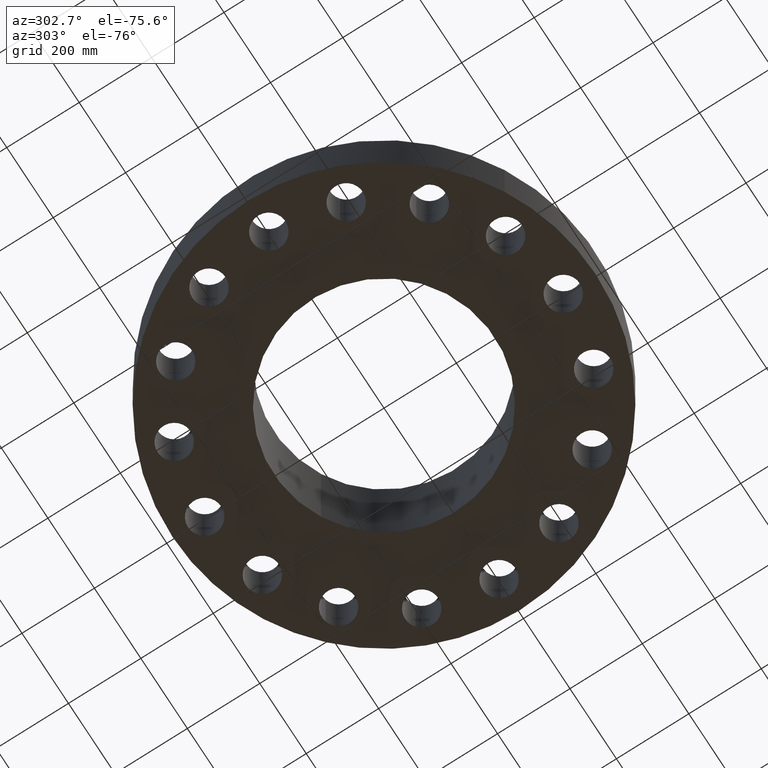
[diagram: clean part render]
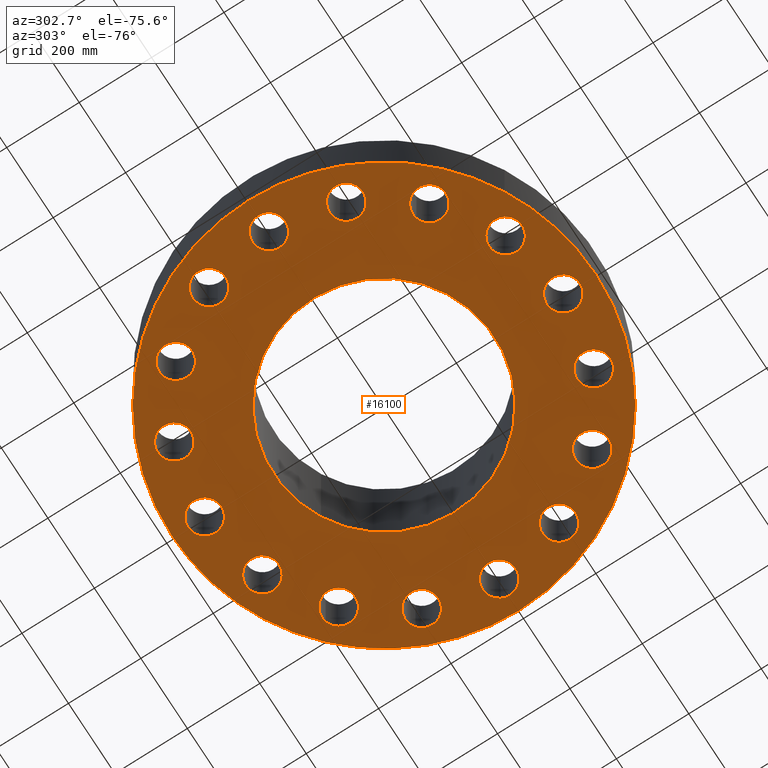
[diagram: same view with one face highlighted and labeled with its STEP entity id]
A machine part, auxiliary view. The second image highlights one B-rep face of the part: STEP entity #16100.
In plain terms, the highlighted planar face has unit normal (0, 0, 1).
Its self-contained STEP definition (entity closure, byte-faithful):
#65=AXIS2_PLACEMENT_3D('Circle Axis2P3D',#63,#64,$) ;
#82=AXIS2_PLACEMENT_3D('Circle Axis2P3D',#80,#81,$) ;
#433=AXIS2_PLACEMENT_3D('Circle Axis2P3D',#431,#432,$) ;
#442=AXIS2_PLACEMENT_3D('Circle Axis2P3D',#440,#441,$) ;
#449=AXIS2_PLACEMENT_3D('Circle Axis2P3D',#447,#448,$) ;
#475=AXIS2_PLACEMENT_3D('Circle Axis2P3D',#473,#474,$) ;
#482=AXIS2_PLACEMENT_3D('Circle Axis2P3D',#480,#481,$) ;
#489=AXIS2_PLACEMENT_3D('Circle Axis2P3D',#487,#488,$) ;
#565=AXIS2_PLACEMENT_3D('Circle Axis2P3D',#563,#564,$) ;
#577=AXIS2_PLACEMENT_3D('Circle Axis2P3D',#575,#576,$) ;
#608=AXIS2_PLACEMENT_3D('Circle Axis2P3D',#606,#607,$) ;
#620=AXIS2_PLACEMENT_3D('Circle Axis2P3D',#618,#619,$) ;
#651=AXIS2_PLACEMENT_3D('Circle Axis2P3D',#649,#650,$) ;
#663=AXIS2_PLACEMENT_3D('Circle Axis2P3D',#661,#662,$) ;
#694=AXIS2_PLACEMENT_3D('Circle Axis2P3D',#692,#693,$) ;
#706=AXIS2_PLACEMENT_3D('Circle Axis2P3D',#704,#705,$) ;
#737=AXIS2_PLACEMENT_3D('Circle Axis2P3D',#735,#736,$) ;
#749=AXIS2_PLACEMENT_3D('Circle Axis2P3D',#747,#748,$) ;
#780=AXIS2_PLACEMENT_3D('Circle Axis2P3D',#778,#779,$) ;
#792=AXIS2_PLACEMENT_3D('Circle Axis2P3D',#790,#791,$) ;
#823=AXIS2_PLACEMENT_3D('Circle Axis2P3D',#821,#822,$) ;
#835=AXIS2_PLACEMENT_3D('Circle Axis2P3D',#833,#834,$) ;
#866=AXIS2_PLACEMENT_3D('Circle Axis2P3D',#864,#865,$) ;
#878=AXIS2_PLACEMENT_3D('Circle Axis2P3D',#876,#877,$) ;
#909=AXIS2_PLACEMENT_3D('Circle Axis2P3D',#907,#908,$) ;
#921=AXIS2_PLACEMENT_3D('Circle Axis2P3D',#919,#920,$) ;
#952=AXIS2_PLACEMENT_3D('Circle Axis2P3D',#950,#951,$) ;
#964=AXIS2_PLACEMENT_3D('Circle Axis2P3D',#962,#963,$) ;
#995=AXIS2_PLACEMENT_3D('Circle Axis2P3D',#993,#994,$) ;
#1007=AXIS2_PLACEMENT_3D('Circle Axis2P3D',#1005,#1006,$) ;
#1038=AXIS2_PLACEMENT_3D('Circle Axis2P3D',#1036,#1037,$) ;
#1050=AXIS2_PLACEMENT_3D('Circle Axis2P3D',#1048,#1049,$) ;
#1081=AXIS2_PLACEMENT_3D('Circle Axis2P3D',#1079,#1080,$) ;
#1093=AXIS2_PLACEMENT_3D('Circle Axis2P3D',#1091,#1092,$) ;
#1124=AXIS2_PLACEMENT_3D('Circle Axis2P3D',#1122,#1123,$) ;
#1136=AXIS2_PLACEMENT_3D('Circle Axis2P3D',#1134,#1135,$) ;
#1167=AXIS2_PLACEMENT_3D('Circle Axis2P3D',#1165,#1166,$) ;
#1179=AXIS2_PLACEMENT_3D('Circle Axis2P3D',#1177,#1178,$) ;
#1461=AXIS2_PLACEMENT_3D('Circle Axis2P3D',#1459,#1460,$) ;
#1487=AXIS2_PLACEMENT_3D('Circle Axis2P3D',#1485,#1486,$) ;
#16022=AXIS2_PLACEMENT_3D('Plane Axis2P3D',#16019,#16020,#16021) ;
#46=CARTESIAN_POINT('Vertex',(17.9115755631,-0.867760224877,2.2401153548E-016)) ;
#60=CARTESIAN_POINT('Vertex',(21.0884244371,0.867760224877,2.2401153548E-016)) ;
#63=CARTESIAN_POINT('Axis2P3D Location',(19.5000000001,0.,0.)) ;
#80=CARTESIAN_POINT('Axis2P3D Location',(19.5000000001,0.,0.)) ;
#431=CARTESIAN_POINT('Axis2P3D Location',(0.,0.,3.35689481461E-015)) ;
#435=CARTESIAN_POINT('Vertex',(-8.80570800757E-015,23.0000000001,0.)) ;
#437=CARTESIAN_POINT('Vertex',(11.0267873879,20.1843989236,3.35689481461E-015)) ;
#440=CARTESIAN_POINT('Axis2P3D Location',(0.,0.,3.35689481461E-015)) ;
#444=CARTESIAN_POINT('Vertex',(-23.0000000001,-2.81668763805E-015,0.)) ;
#447=CARTESIAN_POINT('Axis2P3D Location',(0.,0.,3.35689481461E-015)) ;
#451=CARTESIAN_POINT('Vertex',(-11.0267873879,-20.1843989236,3.35689481461E-015)) ;
#473=CARTESIAN_POINT('Axis2P3D Location',(0.,0.,3.35689481461E-015)) ;
#477=CARTESIAN_POINT('Vertex',(-1.39127339209E-014,-23.0000000001,0.)) ;
#480=CARTESIAN_POINT('Axis2P3D Location',(0.,0.,3.35689481461E-015)) ;
#484=CARTESIAN_POINT('Vertex',(23.0000000001,6.71378962923E-015,0.)) ;
#487=CARTESIAN_POINT('Axis2P3D Location',(0.,0.,3.35689481461E-015)) ;
#553=CARTESIAN_POINT('Vertex',(16.2160605964,-7.65616912643,2.2401153548E-016)) ;
#560=CARTESIAN_POINT('Vertex',(19.8152411717,-7.26848473587,2.2401153548E-016)) ;
#563=CARTESIAN_POINT('Axis2P3D Location',(18.015650884,-7.46232693115,0.)) ;
#575=CARTESIAN_POINT('Axis2P3D Location',(18.015650884,-7.46232693115,0.)) ;
#596=CARTESIAN_POINT('Vertex',(12.0517974029,-13.2789956818,2.2401153548E-016)) ;
#603=CARTESIAN_POINT('Vertex',(15.5253670635,-14.2981687846,2.2401153548E-016)) ;
#606=CARTESIAN_POINT('Axis2P3D Location',(13.7885822332,-13.7885822332,0.)) ;
#618=CARTESIAN_POINT('Axis2P3D Location',(13.7885822332,-13.7885822332,0.)) ;
#639=CARTESIAN_POINT('Vertex',(6.05275730464,-16.8802155191,2.2401153548E-016)) ;
#646=CARTESIAN_POINT('Vertex',(8.87189655765,-19.151086249,2.2401153548E-016)) ;
#649=CARTESIAN_POINT('Axis2P3D Location',(7.46232693115,-18.015650884,0.)) ;
#661=CARTESIAN_POINT('Axis2P3D Location',(7.46232693115,-18.015650884,0.)) ;
#682=CARTESIAN_POINT('Vertex',(-0.867760224877,-17.9115755631,2.2401153548E-016)) ;
#689=CARTESIAN_POINT('Vertex',(0.867760224877,-21.0884244371,2.2401153548E-016)) ;
#692=CARTESIAN_POINT('Axis2P3D Location',(1.19403062917E-015,-19.5000000001,0.)) ;
#704=CARTESIAN_POINT('Axis2P3D Location',(1.19403062917E-015,-19.5000000001,0.)) ;
#725=CARTESIAN_POINT('Vertex',(-7.65616912643,-16.2160605964,2.2401153548E-016)) ;
#732=CARTESIAN_POINT('Vertex',(-7.26848473587,-19.8152411717,2.2401153548E-016)) ;
#735=CARTESIAN_POINT('Axis2P3D Location',(-7.46232693115,-18.015650884,0.)) ;
#747=CARTESIAN_POINT('Axis2P3D Location',(-7.46232693115,-18.015650884,0.)) ;
#768=CARTESIAN_POINT('Vertex',(-13.2789956818,-12.0517974029,2.2401153548E-016)) ;
#775=CARTESIAN_POINT('Vertex',(-14.2981687846,-15.5253670635,2.2401153548E-016)) ;
#778=CARTESIAN_POINT('Axis2P3D Location',(-13.7885822332,-13.7885822332,0.)) ;
#790=CARTESIAN_POINT('Axis2P3D Location',(-13.7885822332,-13.7885822332,0.)) ;
#811=CARTESIAN_POINT('Vertex',(-16.8802155191,-6.05275730464,2.2401153548E-016)) ;
#818=CARTESIAN_POINT('Vertex',(-19.151086249,-8.87189655765,2.2401153548E-016)) ;
#821=CARTESIAN_POINT('Axis2P3D Location',(-18.015650884,-7.46232693115,0.)) ;
#833=CARTESIAN_POINT('Axis2P3D Location',(-18.015650884,-7.46232693115,0.)) ;
#854=CARTESIAN_POINT('Vertex',(-17.9115755631,0.867760224877,2.2401153548E-016)) ;
#861=CARTESIAN_POINT('Vertex',(-21.0884244371,-0.867760224877,2.2401153548E-016)) ;
#864=CARTESIAN_POINT('Axis2P3D Location',(-19.5000000001,-2.38806125835E-015,0.)) ;
#876=CARTESIAN_POINT('Axis2P3D Location',(-19.5000000001,-2.38806125835E-015,0.)) ;
#897=CARTESIAN_POINT('Vertex',(-16.2160605964,7.65616912643,2.2401153548E-016)) ;
#904=CARTESIAN_POINT('Vertex',(-19.8152411717,7.26848473587,2.2401153548E-016)) ;
#907=CARTESIAN_POINT('Axis2P3D Location',(-18.015650884,7.46232693115,0.)) ;
#919=CARTESIAN_POINT('Axis2P3D Location',(-18.015650884,7.46232693115,0.)) ;
#940=CARTESIAN_POINT('Vertex',(-12.0517974029,13.2789956818,2.2401153548E-016)) ;
#947=CARTESIAN_POINT('Vertex',(-15.5253670635,14.2981687846,2.2401153548E-016)) ;
#950=CARTESIAN_POINT('Axis2P3D Location',(-13.7885822332,13.7885822332,0.)) ;
#962=CARTESIAN_POINT('Axis2P3D Location',(-13.7885822332,13.7885822332,0.)) ;
#983=CARTESIAN_POINT('Vertex',(-6.05275730464,16.8802155191,2.2401153548E-016)) ;
#990=CARTESIAN_POINT('Vertex',(-8.87189655765,19.151086249,2.2401153548E-016)) ;
#993=CARTESIAN_POINT('Axis2P3D Location',(-7.46232693115,18.015650884,0.)) ;
#1005=CARTESIAN_POINT('Axis2P3D Location',(-7.46232693115,18.015650884,0.)) ;
#1026=CARTESIAN_POINT('Vertex',(0.867760224877,17.9115755631,2.2401153548E-016)) ;
#1033=CARTESIAN_POINT('Vertex',(-0.867760224877,21.0884244371,2.2401153548E-016)) ;
#1036=CARTESIAN_POINT('Axis2P3D Location',(-3.58209188752E-015,19.5000000001,0.)) ;
#1048=CARTESIAN_POINT('Axis2P3D Location',(-3.58209188752E-015,19.5000000001,0.)) ;
#1069=CARTESIAN_POINT('Vertex',(7.65616912643,16.2160605964,2.22372426684E-016)) ;
#1076=CARTESIAN_POINT('Vertex',(7.26848473587,19.8152411717,2.22372426684E-016)) ;
#1079=CARTESIAN_POINT('Axis2P3D Location',(7.46232693115,18.015650884,-3.2782175924E-018)) ;
#1091=CARTESIAN_POINT('Axis2P3D Location',(7.46232693115,18.015650884,-3.2782175924E-018)) ;
#1112=CARTESIAN_POINT('Vertex',(13.2789956818,12.0517974029,2.2401153548E-016)) ;
#1119=CARTESIAN_POINT('Vertex',(14.2981687846,15.5253670635,2.2401153548E-016)) ;
#1122=CARTESIAN_POINT('Axis2P3D Location',(13.7885822332,13.7885822332,0.)) ;
#1134=CARTESIAN_POINT('Axis2P3D Location',(13.7885822332,13.7885822332,0.)) ;
#1155=CARTESIAN_POINT('Vertex',(16.8802155191,6.05275730464,2.2401153548E-016)) ;
#1162=CARTESIAN_POINT('Vertex',(19.151086249,8.87189655765,2.2401153548E-016)) ;
#1165=CARTESIAN_POINT('Axis2P3D Location',(18.015650884,7.46232693115,0.)) ;
#1177=CARTESIAN_POINT('Axis2P3D Location',(18.015650884,7.46232693115,0.)) ;
#1459=CARTESIAN_POINT('Axis2P3D Location',(0.,0.,0.)) ;
#1463=CARTESIAN_POINT('Vertex',(-5.75310646327,-10.5309907427,0.)) ;
#1465=CARTESIAN_POINT('Vertex',(5.75310646327,10.5309907427,0.)) ;
#1485=CARTESIAN_POINT('Axis2P3D Location',(0.,0.,0.)) ;
#16019=CARTESIAN_POINT('Axis2P3D Location',(0.,0.,0.)) ;
#64=DIRECTION('Axis2P3D Direction',(0.,-0.,0.0393700787402)) ;
#81=DIRECTION('Axis2P3D Direction',(0.,-0.,0.0393700787402)) ;
#432=DIRECTION('Axis2P3D Direction',(0.,0.,-0.0393700787402)) ;
#441=DIRECTION('Axis2P3D Direction',(0.,0.,-0.0393700787402)) ;
#448=DIRECTION('Axis2P3D Direction',(0.,0.,-0.0393700787402)) ;
#474=DIRECTION('Axis2P3D Direction',(0.,0.,-0.0393700787402)) ;
#481=DIRECTION('Axis2P3D Direction',(0.,0.,-0.0393700787402)) ;
#488=DIRECTION('Axis2P3D Direction',(0.,0.,-0.0393700787402)) ;
#564=DIRECTION('Axis2P3D Direction',(-0.,0.,0.0393700787402)) ;
#576=DIRECTION('Axis2P3D Direction',(-0.,0.,0.0393700787402)) ;
#607=DIRECTION('Axis2P3D Direction',(-0.,0.,0.0393700787402)) ;
#619=DIRECTION('Axis2P3D Direction',(-0.,0.,0.0393700787402)) ;
#650=DIRECTION('Axis2P3D Direction',(-0.,0.,0.0393700787402)) ;
#662=DIRECTION('Axis2P3D Direction',(-0.,0.,0.0393700787402)) ;
#693=DIRECTION('Axis2P3D Direction',(-0.,0.,0.0393700787402)) ;
#705=DIRECTION('Axis2P3D Direction',(-0.,0.,0.0393700787402)) ;
#736=DIRECTION('Axis2P3D Direction',(0.,0.,0.0393700787402)) ;
#748=DIRECTION('Axis2P3D Direction',(0.,0.,0.0393700787402)) ;
#779=DIRECTION('Axis2P3D Direction',(0.,0.,0.0393700787402)) ;
#791=DIRECTION('Axis2P3D Direction',(0.,0.,0.0393700787402)) ;
#822=DIRECTION('Axis2P3D Direction',(0.,0.,0.0393700787402)) ;
#834=DIRECTION('Axis2P3D Direction',(0.,0.,0.0393700787402)) ;
#865=DIRECTION('Axis2P3D Direction',(0.,0.,0.0393700787402)) ;
#877=DIRECTION('Axis2P3D Direction',(0.,0.,0.0393700787402)) ;
#908=DIRECTION('Axis2P3D Direction',(0.,0.,0.0393700787402)) ;
#920=DIRECTION('Axis2P3D Direction',(0.,0.,0.0393700787402)) ;
#951=DIRECTION('Axis2P3D Direction',(0.,0.,0.0393700787402)) ;
#963=DIRECTION('Axis2P3D Direction',(0.,0.,0.0393700787402)) ;
#994=DIRECTION('Axis2P3D Direction',(0.,0.,0.0393700787402)) ;
#1006=DIRECTION('Axis2P3D Direction',(0.,0.,0.0393700787402)) ;
#1037=DIRECTION('Axis2P3D Direction',(0.,0.,0.0393700787402)) ;
#1049=DIRECTION('Axis2P3D Direction',(0.,0.,0.0393700787402)) ;
#1080=DIRECTION('Axis2P3D Direction',(0.,-0.,0.0393700787402)) ;
#1092=DIRECTION('Axis2P3D Direction',(0.,-0.,0.0393700787402)) ;
#1123=DIRECTION('Axis2P3D Direction',(0.,-0.,0.0393700787402)) ;
#1135=DIRECTION('Axis2P3D Direction',(0.,-0.,0.0393700787402)) ;
#1166=DIRECTION('Axis2P3D Direction',(0.,-0.,0.0393700787402)) ;
#1178=DIRECTION('Axis2P3D Direction',(0.,-0.,0.0393700787402)) ;
#1460=DIRECTION('Axis2P3D Direction',(0.,0.,-0.0393700787402)) ;
#1486=DIRECTION('Axis2P3D Direction',(0.,0.,-0.0393700787402)) ;
#16020=DIRECTION('Axis2P3D Direction',(0.,0.,0.0393700787402)) ;
#16021=DIRECTION('Axis2P3D XDirection',(0.0393700787402,0.,0.)) ;
#16025=ORIENTED_EDGE('',*,*,#479,.T.) ;
#16026=ORIENTED_EDGE('',*,*,#453,.T.) ;
#16027=ORIENTED_EDGE('',*,*,#446,.T.) ;
#16028=ORIENTED_EDGE('',*,*,#439,.T.) ;
#16029=ORIENTED_EDGE('',*,*,#491,.T.) ;
#16030=ORIENTED_EDGE('',*,*,#486,.T.) ;
#16033=ORIENTED_EDGE('',*,*,#1169,.F.) ;
#16034=ORIENTED_EDGE('',*,*,#1181,.F.) ;
#16037=ORIENTED_EDGE('',*,*,#1126,.F.) ;
#16038=ORIENTED_EDGE('',*,*,#1138,.F.) ;
#16041=ORIENTED_EDGE('',*,*,#1083,.F.) ;
#16042=ORIENTED_EDGE('',*,*,#1095,.F.) ;
#16045=ORIENTED_EDGE('',*,*,#1040,.F.) ;
#16046=ORIENTED_EDGE('',*,*,#1052,.F.) ;
#16049=ORIENTED_EDGE('',*,*,#997,.F.) ;
#16050=ORIENTED_EDGE('',*,*,#1009,.F.) ;
#16053=ORIENTED_EDGE('',*,*,#954,.F.) ;
#16054=ORIENTED_EDGE('',*,*,#966,.F.) ;
#16057=ORIENTED_EDGE('',*,*,#911,.F.) ;
#16058=ORIENTED_EDGE('',*,*,#923,.F.) ;
#16061=ORIENTED_EDGE('',*,*,#868,.F.) ;
#16062=ORIENTED_EDGE('',*,*,#880,.F.) ;
#16065=ORIENTED_EDGE('',*,*,#825,.F.) ;
#16066=ORIENTED_EDGE('',*,*,#837,.F.) ;
#16069=ORIENTED_EDGE('',*,*,#782,.F.) ;
#16070=ORIENTED_EDGE('',*,*,#794,.F.) ;
#16073=ORIENTED_EDGE('',*,*,#739,.F.) ;
#16074=ORIENTED_EDGE('',*,*,#751,.F.) ;
#16077=ORIENTED_EDGE('',*,*,#696,.F.) ;
#16078=ORIENTED_EDGE('',*,*,#708,.F.) ;
#16081=ORIENTED_EDGE('',*,*,#653,.F.) ;
#16082=ORIENTED_EDGE('',*,*,#665,.F.) ;
#16085=ORIENTED_EDGE('',*,*,#610,.F.) ;
#16086=ORIENTED_EDGE('',*,*,#622,.F.) ;
#16089=ORIENTED_EDGE('',*,*,#567,.F.) ;
#16090=ORIENTED_EDGE('',*,*,#579,.F.) ;
#16093=ORIENTED_EDGE('',*,*,#84,.F.) ;
#16094=ORIENTED_EDGE('',*,*,#67,.F.) ;
#16097=ORIENTED_EDGE('',*,*,#1489,.T.) ;
#16098=ORIENTED_EDGE('',*,*,#1467,.T.) ;
#16035=FACE_BOUND('',#16032,.T.) ;
#16039=FACE_BOUND('',#16036,.T.) ;
#16043=FACE_BOUND('',#16040,.T.) ;
#16047=FACE_BOUND('',#16044,.T.) ;
#16051=FACE_BOUND('',#16048,.T.) ;
#16055=FACE_BOUND('',#16052,.T.) ;
#16059=FACE_BOUND('',#16056,.T.) ;
#16063=FACE_BOUND('',#16060,.T.) ;
#16067=FACE_BOUND('',#16064,.T.) ;
#16071=FACE_BOUND('',#16068,.T.) ;
#16075=FACE_BOUND('',#16072,.T.) ;
#16079=FACE_BOUND('',#16076,.T.) ;
#16083=FACE_BOUND('',#16080,.T.) ;
#16087=FACE_BOUND('',#16084,.T.) ;
#16091=FACE_BOUND('',#16088,.T.) ;
#16095=FACE_BOUND('',#16092,.T.) ;
#16099=FACE_BOUND('',#16096,.T.) ;
#16100=ADVANCED_FACE('PartBody',(#16031,#16035,#16039,#16043,#16047,#16051,#16055,#16059,#16063,#16067,#16071,#16075,#16079,#16083,#16087,#16091,#16095,#16099),#16023,.F.) ;
#66=CIRCLE('generated circle',#65,1.81000000001) ;
#83=CIRCLE('generated circle',#82,1.81000000001) ;
#434=CIRCLE('generated circle',#433,23.0000000001) ;
#443=CIRCLE('generated circle',#442,23.0000000001) ;
#450=CIRCLE('generated circle',#449,23.0000000001) ;
#476=CIRCLE('generated circle',#475,23.0000000001) ;
#483=CIRCLE('generated circle',#482,23.0000000001) ;
#490=CIRCLE('generated circle',#489,23.0000000001) ;
#566=CIRCLE('generated circle',#565,1.81000000001) ;
#578=CIRCLE('generated circle',#577,1.81000000001) ;
#609=CIRCLE('generated circle',#608,1.81000000001) ;
#621=CIRCLE('generated circle',#620,1.81000000001) ;
#652=CIRCLE('generated circle',#651,1.81000000001) ;
#664=CIRCLE('generated circle',#663,1.81000000001) ;
#695=CIRCLE('generated circle',#694,1.81000000001) ;
#707=CIRCLE('generated circle',#706,1.81000000001) ;
#738=CIRCLE('generated circle',#737,1.81000000001) ;
#750=CIRCLE('generated circle',#749,1.81000000001) ;
#781=CIRCLE('generated circle',#780,1.81000000001) ;
#793=CIRCLE('generated circle',#792,1.81000000001) ;
#824=CIRCLE('generated circle',#823,1.81000000001) ;
#836=CIRCLE('generated circle',#835,1.81000000001) ;
#867=CIRCLE('generated circle',#866,1.81000000001) ;
#879=CIRCLE('generated circle',#878,1.81000000001) ;
#910=CIRCLE('generated circle',#909,1.81000000001) ;
#922=CIRCLE('generated circle',#921,1.81000000001) ;
#953=CIRCLE('generated circle',#952,1.81000000001) ;
#965=CIRCLE('generated circle',#964,1.81000000001) ;
#996=CIRCLE('generated circle',#995,1.81000000001) ;
#1008=CIRCLE('generated circle',#1007,1.81000000001) ;
#1039=CIRCLE('generated circle',#1038,1.81000000001) ;
#1051=CIRCLE('generated circle',#1050,1.81000000001) ;
#1082=CIRCLE('generated circle',#1081,1.81000000001) ;
#1094=CIRCLE('generated circle',#1093,1.81000000001) ;
#1125=CIRCLE('generated circle',#1124,1.81000000001) ;
#1137=CIRCLE('generated circle',#1136,1.81000000001) ;
#1168=CIRCLE('generated circle',#1167,1.81000000001) ;
#1180=CIRCLE('generated circle',#1179,1.81000000001) ;
#1462=CIRCLE('generated circle',#1461,12.) ;
#1488=CIRCLE('generated circle',#1487,12.) ;
#67=EDGE_CURVE('',#61,#47,#66,.F.) ;
#84=EDGE_CURVE('',#47,#61,#83,.F.) ;
#439=EDGE_CURVE('',#436,#438,#434,.T.) ;
#446=EDGE_CURVE('',#445,#436,#443,.T.) ;
#453=EDGE_CURVE('',#452,#445,#450,.T.) ;
#479=EDGE_CURVE('',#478,#452,#476,.T.) ;
#486=EDGE_CURVE('',#485,#478,#483,.T.) ;
#491=EDGE_CURVE('',#438,#485,#490,.T.) ;
#567=EDGE_CURVE('',#561,#554,#566,.F.) ;
#579=EDGE_CURVE('',#554,#561,#578,.F.) ;
#610=EDGE_CURVE('',#604,#597,#609,.F.) ;
#622=EDGE_CURVE('',#597,#604,#621,.F.) ;
#653=EDGE_CURVE('',#647,#640,#652,.F.) ;
#665=EDGE_CURVE('',#640,#647,#664,.F.) ;
#696=EDGE_CURVE('',#690,#683,#695,.F.) ;
#708=EDGE_CURVE('',#683,#690,#707,.F.) ;
#739=EDGE_CURVE('',#733,#726,#738,.F.) ;
#751=EDGE_CURVE('',#726,#733,#750,.F.) ;
#782=EDGE_CURVE('',#776,#769,#781,.F.) ;
#794=EDGE_CURVE('',#769,#776,#793,.F.) ;
#825=EDGE_CURVE('',#819,#812,#824,.F.) ;
#837=EDGE_CURVE('',#812,#819,#836,.F.) ;
#868=EDGE_CURVE('',#862,#855,#867,.F.) ;
#880=EDGE_CURVE('',#855,#862,#879,.F.) ;
#911=EDGE_CURVE('',#905,#898,#910,.F.) ;
#923=EDGE_CURVE('',#898,#905,#922,.F.) ;
#954=EDGE_CURVE('',#948,#941,#953,.F.) ;
#966=EDGE_CURVE('',#941,#948,#965,.F.) ;
#997=EDGE_CURVE('',#991,#984,#996,.F.) ;
#1009=EDGE_CURVE('',#984,#991,#1008,.F.) ;
#1040=EDGE_CURVE('',#1034,#1027,#1039,.F.) ;
#1052=EDGE_CURVE('',#1027,#1034,#1051,.F.) ;
#1083=EDGE_CURVE('',#1077,#1070,#1082,.F.) ;
#1095=EDGE_CURVE('',#1070,#1077,#1094,.F.) ;
#1126=EDGE_CURVE('',#1120,#1113,#1125,.F.) ;
#1138=EDGE_CURVE('',#1113,#1120,#1137,.F.) ;
#1169=EDGE_CURVE('',#1163,#1156,#1168,.F.) ;
#1181=EDGE_CURVE('',#1156,#1163,#1180,.F.) ;
#1467=EDGE_CURVE('',#1464,#1466,#1462,.F.) ;
#1489=EDGE_CURVE('',#1466,#1464,#1488,.F.) ;
#16024=EDGE_LOOP('',(#16025,#16026,#16027,#16028,#16029,#16030)) ;
#16032=EDGE_LOOP('',(#16033,#16034)) ;
#16036=EDGE_LOOP('',(#16037,#16038)) ;
#16040=EDGE_LOOP('',(#16041,#16042)) ;
#16044=EDGE_LOOP('',(#16045,#16046)) ;
#16048=EDGE_LOOP('',(#16049,#16050)) ;
#16052=EDGE_LOOP('',(#16053,#16054)) ;
#16056=EDGE_LOOP('',(#16057,#16058)) ;
#16060=EDGE_LOOP('',(#16061,#16062)) ;
#16064=EDGE_LOOP('',(#16065,#16066)) ;
#16068=EDGE_LOOP('',(#16069,#16070)) ;
#16072=EDGE_LOOP('',(#16073,#16074)) ;
#16076=EDGE_LOOP('',(#16077,#16078)) ;
#16080=EDGE_LOOP('',(#16081,#16082)) ;
#16084=EDGE_LOOP('',(#16085,#16086)) ;
#16088=EDGE_LOOP('',(#16089,#16090)) ;
#16092=EDGE_LOOP('',(#16093,#16094)) ;
#16096=EDGE_LOOP('',(#16097,#16098)) ;
#16031=FACE_OUTER_BOUND('',#16024,.T.) ;
#16023=PLANE('',#16022) ;
#47=VERTEX_POINT('',#46) ;
#61=VERTEX_POINT('',#60) ;
#436=VERTEX_POINT('',#435) ;
#438=VERTEX_POINT('',#437) ;
#445=VERTEX_POINT('',#444) ;
#452=VERTEX_POINT('',#451) ;
#478=VERTEX_POINT('',#477) ;
#485=VERTEX_POINT('',#484) ;
#554=VERTEX_POINT('',#553) ;
#561=VERTEX_POINT('',#560) ;
#597=VERTEX_POINT('',#596) ;
#604=VERTEX_POINT('',#603) ;
#640=VERTEX_POINT('',#639) ;
#647=VERTEX_POINT('',#646) ;
#683=VERTEX_POINT('',#682) ;
#690=VERTEX_POINT('',#689) ;
#726=VERTEX_POINT('',#725) ;
#733=VERTEX_POINT('',#732) ;
#769=VERTEX_POINT('',#768) ;
#776=VERTEX_POINT('',#775) ;
#812=VERTEX_POINT('',#811) ;
#819=VERTEX_POINT('',#818) ;
#855=VERTEX_POINT('',#854) ;
#862=VERTEX_POINT('',#861) ;
#898=VERTEX_POINT('',#897) ;
#905=VERTEX_POINT('',#904) ;
#941=VERTEX_POINT('',#940) ;
#948=VERTEX_POINT('',#947) ;
#984=VERTEX_POINT('',#983) ;
#991=VERTEX_POINT('',#990) ;
#1027=VERTEX_POINT('',#1026) ;
#1034=VERTEX_POINT('',#1033) ;
#1070=VERTEX_POINT('',#1069) ;
#1077=VERTEX_POINT('',#1076) ;
#1113=VERTEX_POINT('',#1112) ;
#1120=VERTEX_POINT('',#1119) ;
#1156=VERTEX_POINT('',#1155) ;
#1163=VERTEX_POINT('',#1162) ;
#1464=VERTEX_POINT('',#1463) ;
#1466=VERTEX_POINT('',#1465) ;